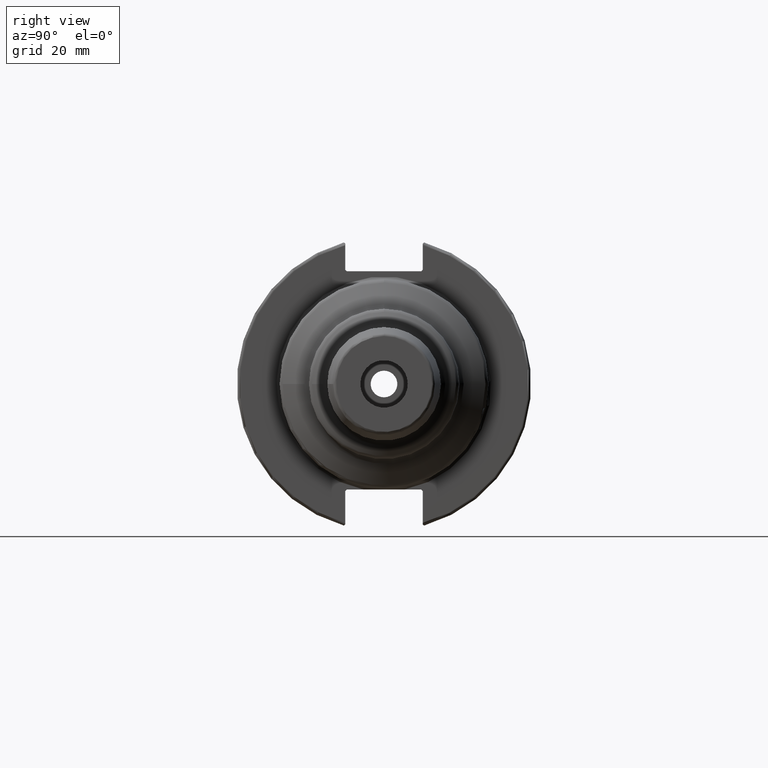
[diagram: clean part render]
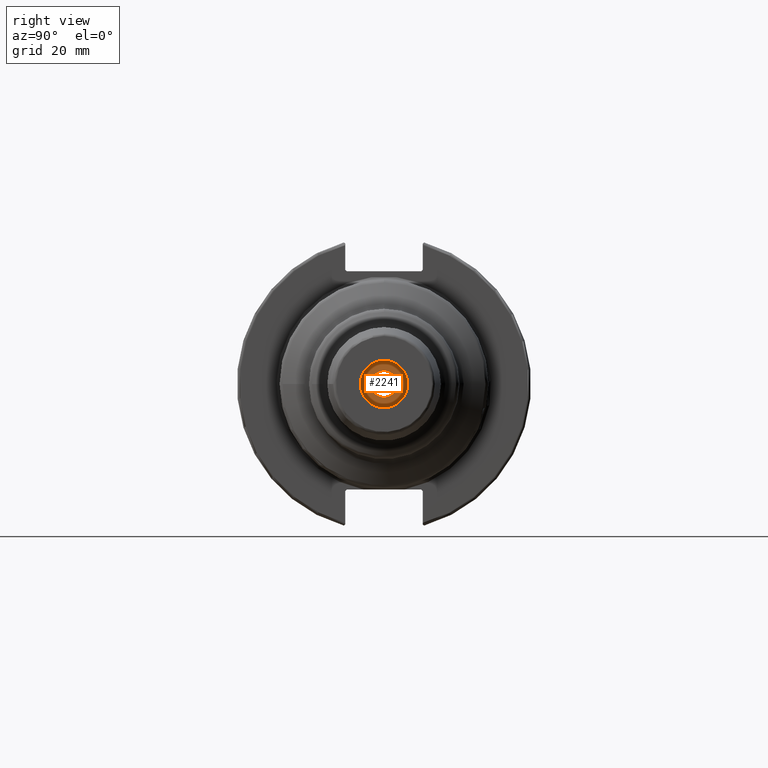
[diagram: same view with one face highlighted and labeled with its STEP entity id]
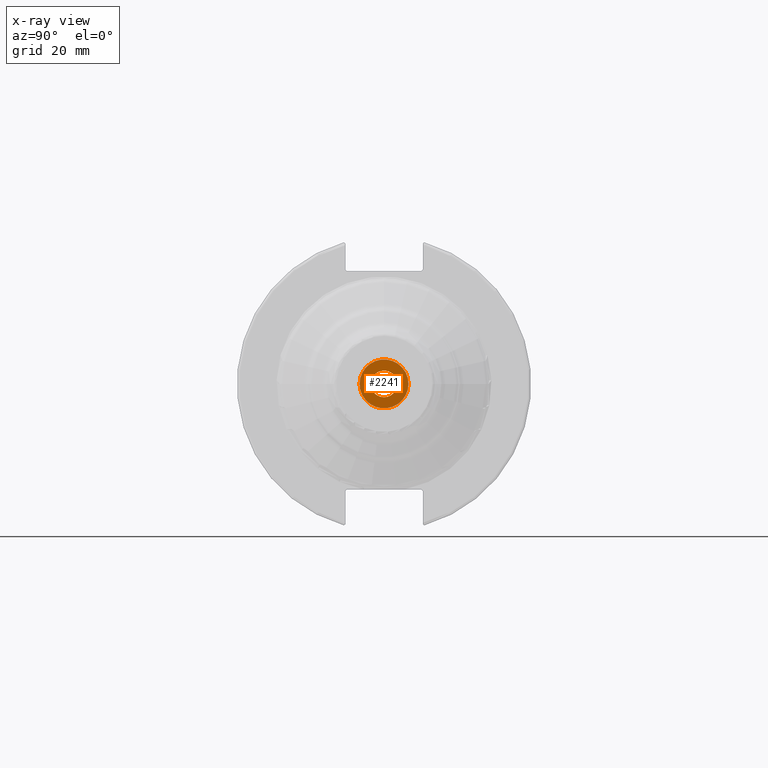
[diagram: x-ray of the same camera — body ghosted, the highlighted face saturated]
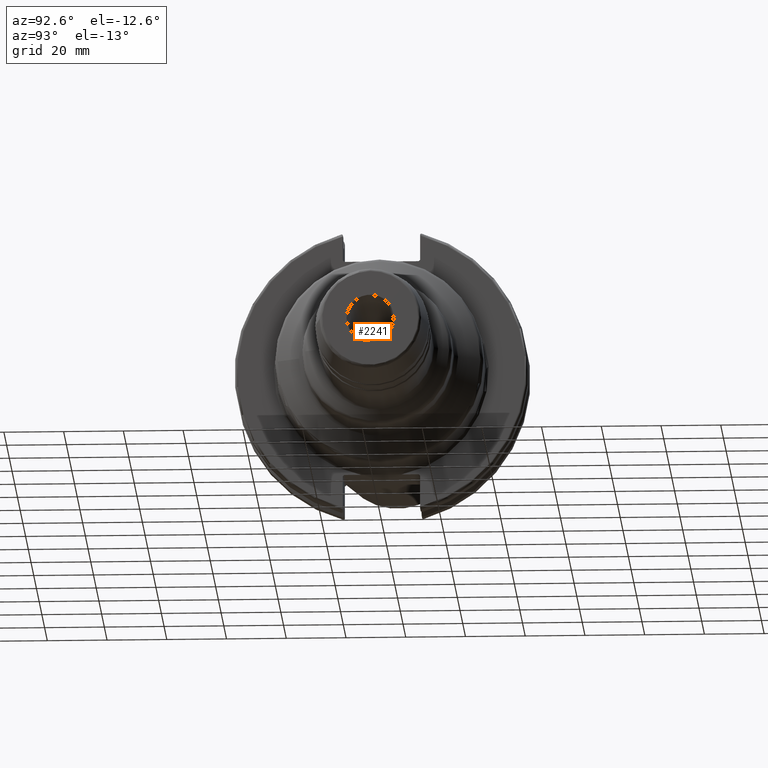
[diagram: same view with one face highlighted and labeled with its STEP entity id]
A machine part, right view. The second image highlights one B-rep face of the part: STEP entity #2241.
The next image is the same camera in x-ray: the body ghosted, the highlighted face saturated — about 9% of this face is hidden behind the body in this view.
A second angle (auxiliary view) of the same face is appended — the face is thin or edge-on in the first view.
In plain terms, the highlighted planar face has unit normal (1, 0, 0).
Its self-contained STEP definition (entity closure, byte-faithful):
#34=PLANE('',#2491);
#94=FACE_BOUND('',#322,.T.);
#206=FACE_OUTER_BOUND('',#321,.T.);
#321=EDGE_LOOP('',(#1719,#1720));
#322=EDGE_LOOP('',(#1721,#1722));
#627=CIRCLE('',#2338,4.458734);
#628=CIRCLE('',#2339,4.458734);
#742=CIRCLE('',#2488,8.19999999999997);
#743=CIRCLE('',#2489,8.19999999999997);
#824=VERTEX_POINT('',#3381);
#825=VERTEX_POINT('',#3382);
#931=VERTEX_POINT('',#3741);
#932=VERTEX_POINT('',#3743);
#1085=EDGE_CURVE('',#824,#825,#627,.T.);
#1086=EDGE_CURVE('',#825,#824,#628,.T.);
#1226=EDGE_CURVE('',#932,#931,#742,.T.);
#1227=EDGE_CURVE('',#931,#932,#743,.T.);
#1719=ORIENTED_EDGE('',*,*,#1226,.T.);
#1720=ORIENTED_EDGE('',*,*,#1227,.T.);
#1721=ORIENTED_EDGE('',*,*,#1085,.T.);
#1722=ORIENTED_EDGE('',*,*,#1086,.T.);
#2241=ADVANCED_FACE('',(#206,#94),#34,.T.);
#2338=AXIS2_PLACEMENT_3D('',#3383,#2652,#2653);
#2339=AXIS2_PLACEMENT_3D('',#3384,#2654,#2655);
#2488=AXIS2_PLACEMENT_3D('',#3744,#2972,#2973);
#2489=AXIS2_PLACEMENT_3D('',#3745,#2974,#2975);
#2491=AXIS2_PLACEMENT_3D('',#3747,#2978,#2979);
#2652=DIRECTION('center_axis',(-1.,0.,0.));
#2653=DIRECTION('ref_axis',(0.,0.,-1.));
#2654=DIRECTION('center_axis',(-1.,0.,0.));
#2655=DIRECTION('ref_axis',(0.,0.,-1.));
#2972=DIRECTION('center_axis',(1.,0.,0.));
#2973=DIRECTION('ref_axis',(0.,0.,-1.));
#2974=DIRECTION('center_axis',(1.,0.,0.));
#2975=DIRECTION('ref_axis',(0.,0.,-1.));
#2978=DIRECTION('center_axis',(1.,0.,0.));
#2979=DIRECTION('ref_axis',(0.,0.,-1.));
#3381=CARTESIAN_POINT('',(50.6,0.,-4.458734));
#3382=CARTESIAN_POINT('',(50.6,-5.46037432134947E-16,4.458734));
#3383=CARTESIAN_POINT('Origin',(50.6,0.,0.));
#3384=CARTESIAN_POINT('Origin',(50.6,0.,0.));
#3741=CARTESIAN_POINT('',(50.6,-8.19999999999997,-1.00421037530083E-15));
#3743=CARTESIAN_POINT('',(50.6,8.19999999999997,0.));
#3744=CARTESIAN_POINT('Origin',(50.6,0.,0.));
#3745=CARTESIAN_POINT('Origin',(50.6,0.,0.));
#3747=CARTESIAN_POINT('Origin',(50.6,-8.32667268468867E-15,0.));